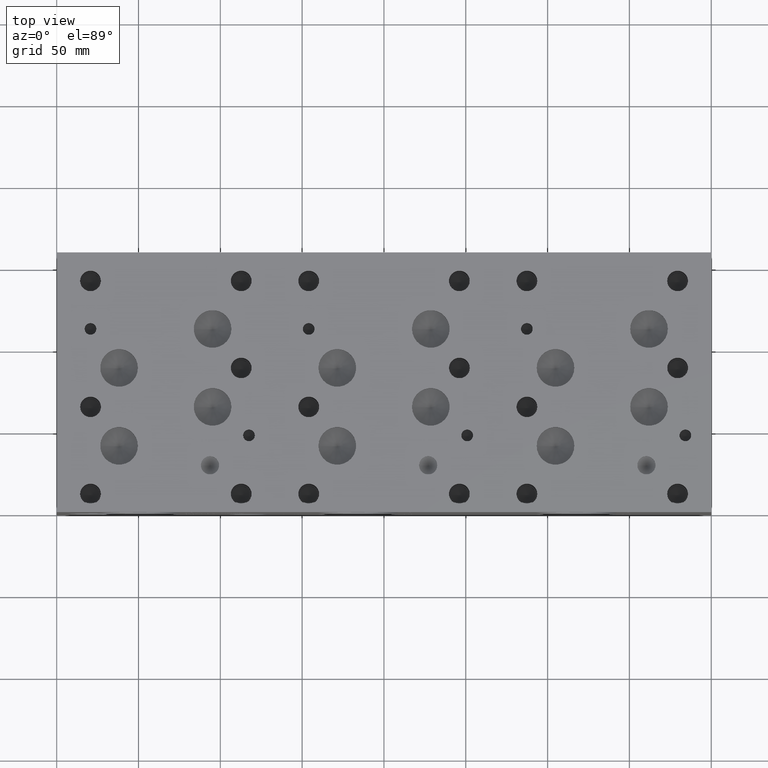
[diagram: clean part render]
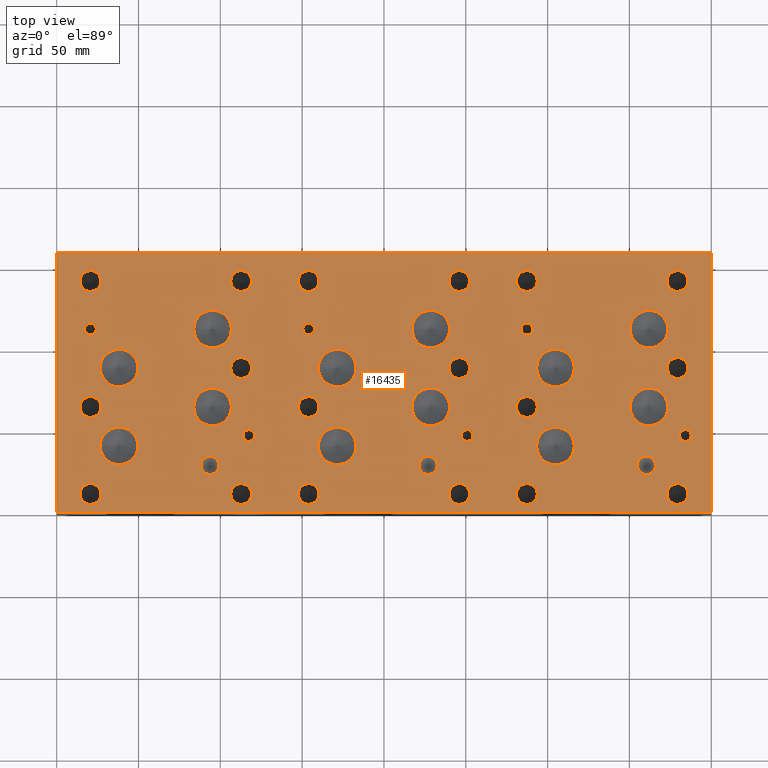
[diagram: same view with one face highlighted and labeled with its STEP entity id]
A machine part, top view. The second image highlights one B-rep face of the part: STEP entity #16435.
In plain terms, the highlighted planar face has unit normal (0, 0, 1).
Its self-contained STEP definition (entity closure, byte-faithful):
#555=CIRCLE('',#17288,5.5626);
#556=CIRCLE('',#17289,5.5626);
#559=CIRCLE('',#17294,5.5626);
#560=CIRCLE('',#17295,5.5626);
#563=CIRCLE('',#17300,5.55625);
#564=CIRCLE('',#17301,5.55625);
#567=CIRCLE('',#17306,11.50874);
#568=CIRCLE('',#17307,11.50874);
#571=CIRCLE('',#17312,11.5062);
#572=CIRCLE('',#17313,11.5062);
#575=CIRCLE('',#17318,11.5062);
#576=CIRCLE('',#17319,11.5062);
#579=CIRCLE('',#17324,11.5062);
#580=CIRCLE('',#17325,11.5062);
#583=CIRCLE('',#17330,11.5062);
#584=CIRCLE('',#17331,11.5062);
#587=CIRCLE('',#17336,11.5062);
#588=CIRCLE('',#17337,11.5062);
#591=CIRCLE('',#17342,11.5062);
#592=CIRCLE('',#17343,11.5062);
#595=CIRCLE('',#17348,11.5062);
#596=CIRCLE('',#17349,11.5062);
#599=CIRCLE('',#17354,11.5062);
#600=CIRCLE('',#17355,11.5062);
#603=CIRCLE('',#17360,11.5062);
#604=CIRCLE('',#17361,11.5062);
#607=CIRCLE('',#17366,11.5062);
#608=CIRCLE('',#17367,11.5062);
#611=CIRCLE('',#17372,11.5062);
#612=CIRCLE('',#17373,11.5062);
#615=CIRCLE('',#17378,3.5687);
#616=CIRCLE('',#17379,3.5687);
#619=CIRCLE('',#17384,3.5687);
#620=CIRCLE('',#17385,3.5687);
#623=CIRCLE('',#17390,3.5687);
#624=CIRCLE('',#17391,3.5687);
#627=CIRCLE('',#17396,3.5687);
#628=CIRCLE('',#17397,3.5687);
#631=CIRCLE('',#17402,3.5687);
#632=CIRCLE('',#17403,3.5687);
#635=CIRCLE('',#17408,3.5687);
#636=CIRCLE('',#17409,3.5687);
#642=CIRCLE('',#17418,6.35);
#643=CIRCLE('',#17419,6.35);
#649=CIRCLE('',#17429,6.35);
#650=CIRCLE('',#17430,6.35);
#656=CIRCLE('',#17440,6.35);
#657=CIRCLE('',#17441,6.35);
#663=CIRCLE('',#17451,6.35);
#664=CIRCLE('',#17452,6.35);
#670=CIRCLE('',#17462,6.35);
#671=CIRCLE('',#17463,6.35);
#677=CIRCLE('',#17473,6.35);
#678=CIRCLE('',#17474,6.35);
#684=CIRCLE('',#17484,6.35);
#685=CIRCLE('',#17485,6.35);
#691=CIRCLE('',#17495,6.35);
#692=CIRCLE('',#17496,6.35);
#698=CIRCLE('',#17506,6.35);
#699=CIRCLE('',#17507,6.35);
#705=CIRCLE('',#17517,6.35);
#706=CIRCLE('',#17518,6.35);
#712=CIRCLE('',#17528,6.35);
#713=CIRCLE('',#17529,6.35);
#719=CIRCLE('',#17539,6.35);
#720=CIRCLE('',#17540,6.35);
#726=CIRCLE('',#17550,6.35);
#727=CIRCLE('',#17551,6.35);
#733=CIRCLE('',#17561,6.35);
#734=CIRCLE('',#17562,6.35);
#740=CIRCLE('',#17572,6.35);
#741=CIRCLE('',#17573,6.35);
#747=CIRCLE('',#17583,6.35);
#748=CIRCLE('',#17584,6.35);
#754=CIRCLE('',#17594,6.35);
#755=CIRCLE('',#17595,6.35);
#761=CIRCLE('',#17605,6.35);
#762=CIRCLE('',#17606,6.35);
#882=FACE_BOUND('',#3372,.T.);
#883=FACE_BOUND('',#3373,.T.);
#884=FACE_BOUND('',#3374,.T.);
#885=FACE_BOUND('',#3375,.T.);
#886=FACE_BOUND('',#3376,.T.);
#887=FACE_BOUND('',#3377,.T.);
#888=FACE_BOUND('',#3378,.T.);
#889=FACE_BOUND('',#3379,.T.);
#890=FACE_BOUND('',#3380,.T.);
#891=FACE_BOUND('',#3381,.T.);
#892=FACE_BOUND('',#3382,.T.);
#893=FACE_BOUND('',#3383,.T.);
#894=FACE_BOUND('',#3384,.T.);
#895=FACE_BOUND('',#3385,.T.);
#896=FACE_BOUND('',#3386,.T.);
#897=FACE_BOUND('',#3387,.T.);
#898=FACE_BOUND('',#3388,.T.);
#899=FACE_BOUND('',#3389,.T.);
#900=FACE_BOUND('',#3390,.T.);
#901=FACE_BOUND('',#3391,.T.);
#902=FACE_BOUND('',#3392,.T.);
#903=FACE_BOUND('',#3393,.T.);
#904=FACE_BOUND('',#3394,.T.);
#905=FACE_BOUND('',#3395,.T.);
#906=FACE_BOUND('',#3396,.T.);
#907=FACE_BOUND('',#3397,.T.);
#908=FACE_BOUND('',#3398,.T.);
#909=FACE_BOUND('',#3399,.T.);
#910=FACE_BOUND('',#3400,.T.);
#911=FACE_BOUND('',#3401,.T.);
#912=FACE_BOUND('',#3402,.T.);
#913=FACE_BOUND('',#3403,.T.);
#914=FACE_BOUND('',#3404,.T.);
#915=FACE_BOUND('',#3405,.T.);
#916=FACE_BOUND('',#3406,.T.);
#917=FACE_BOUND('',#3407,.T.);
#918=FACE_BOUND('',#3408,.T.);
#919=FACE_BOUND('',#3409,.T.);
#920=FACE_BOUND('',#3410,.T.);
#2390=FACE_OUTER_BOUND('',#3371,.T.);
#3371=EDGE_LOOP('',(#14532,#14533,#14534,#14535));
#3372=EDGE_LOOP('',(#14536,#14537));
#3373=EDGE_LOOP('',(#14538,#14539));
#3374=EDGE_LOOP('',(#14540,#14541));
#3375=EDGE_LOOP('',(#14542,#14543));
#3376=EDGE_LOOP('',(#14544,#14545));
#3377=EDGE_LOOP('',(#14546,#14547));
#3378=EDGE_LOOP('',(#14548,#14549));
#3379=EDGE_LOOP('',(#14550,#14551));
#3380=EDGE_LOOP('',(#14552,#14553));
#3381=EDGE_LOOP('',(#14554,#14555));
#3382=EDGE_LOOP('',(#14556,#14557));
#3383=EDGE_LOOP('',(#14558,#14559));
#3384=EDGE_LOOP('',(#14560,#14561));
#3385=EDGE_LOOP('',(#14562,#14563));
#3386=EDGE_LOOP('',(#14564,#14565));
#3387=EDGE_LOOP('',(#14566,#14567));
#3388=EDGE_LOOP('',(#14568,#14569));
#3389=EDGE_LOOP('',(#14570,#14571));
#3390=EDGE_LOOP('',(#14572,#14573));
#3391=EDGE_LOOP('',(#14574,#14575));
#3392=EDGE_LOOP('',(#14576,#14577));
#3393=EDGE_LOOP('',(#14578,#14579));
#3394=EDGE_LOOP('',(#14580,#14581));
#3395=EDGE_LOOP('',(#14582,#14583));
#3396=EDGE_LOOP('',(#14584,#14585));
#3397=EDGE_LOOP('',(#14586,#14587));
#3398=EDGE_LOOP('',(#14588,#14589));
#3399=EDGE_LOOP('',(#14590,#14591));
#3400=EDGE_LOOP('',(#14592,#14593));
#3401=EDGE_LOOP('',(#14594,#14595));
#3402=EDGE_LOOP('',(#14596,#14597));
#3403=EDGE_LOOP('',(#14598,#14599));
#3404=EDGE_LOOP('',(#14600,#14601));
#3405=EDGE_LOOP('',(#14602,#14603));
#3406=EDGE_LOOP('',(#14604,#14605));
#3407=EDGE_LOOP('',(#14606,#14607));
#3408=EDGE_LOOP('',(#14608,#14609));
#3409=EDGE_LOOP('',(#14610,#14611));
#3410=EDGE_LOOP('',(#14612,#14613));
#3470=LINE('',#21578,#4848);
#3530=LINE('',#21853,#4908);
#3839=LINE('',#24587,#5217);
#4789=LINE('',#28691,#6167);
#4848=VECTOR('',#17712,10.);
#4908=VECTOR('',#17826,10.);
#5217=VECTOR('',#18297,10.);
#6167=VECTOR('',#21311,10.);
#6218=VERTEX_POINT('',#21575);
#6219=VERTEX_POINT('',#21577);
#6278=VERTEX_POINT('',#21850);
#6279=VERTEX_POINT('',#21852);
#7508=VERTEX_POINT('',#28027);
#7509=VERTEX_POINT('',#28028);
#7513=VERTEX_POINT('',#28040);
#7514=VERTEX_POINT('',#28041);
#7518=VERTEX_POINT('',#28053);
#7519=VERTEX_POINT('',#28054);
#7523=VERTEX_POINT('',#28066);
#7524=VERTEX_POINT('',#28067);
#7528=VERTEX_POINT('',#28079);
#7529=VERTEX_POINT('',#28080);
#7533=VERTEX_POINT('',#28092);
#7534=VERTEX_POINT('',#28093);
#7538=VERTEX_POINT('',#28105);
#7539=VERTEX_POINT('',#28106);
#7543=VERTEX_POINT('',#28118);
#7544=VERTEX_POINT('',#28119);
#7548=VERTEX_POINT('',#28131);
#7549=VERTEX_POINT('',#28132);
#7553=VERTEX_POINT('',#28144);
#7554=VERTEX_POINT('',#28145);
#7558=VERTEX_POINT('',#28157);
#7559=VERTEX_POINT('',#28158);
#7563=VERTEX_POINT('',#28170);
#7564=VERTEX_POINT('',#28171);
#7568=VERTEX_POINT('',#28183);
#7569=VERTEX_POINT('',#28184);
#7573=VERTEX_POINT('',#28196);
#7574=VERTEX_POINT('',#28197);
#7578=VERTEX_POINT('',#28209);
#7579=VERTEX_POINT('',#28210);
#7583=VERTEX_POINT('',#28222);
#7584=VERTEX_POINT('',#28223);
#7588=VERTEX_POINT('',#28235);
#7589=VERTEX_POINT('',#28236);
#7593=VERTEX_POINT('',#28248);
#7594=VERTEX_POINT('',#28249);
#7598=VERTEX_POINT('',#28261);
#7599=VERTEX_POINT('',#28262);
#7603=VERTEX_POINT('',#28274);
#7604=VERTEX_POINT('',#28275);
#7608=VERTEX_POINT('',#28287);
#7609=VERTEX_POINT('',#28288);
#7616=VERTEX_POINT('',#28307);
#7617=VERTEX_POINT('',#28308);
#7624=VERTEX_POINT('',#28329);
#7625=VERTEX_POINT('',#28330);
#7632=VERTEX_POINT('',#28351);
#7633=VERTEX_POINT('',#28352);
#7640=VERTEX_POINT('',#28373);
#7641=VERTEX_POINT('',#28374);
#7648=VERTEX_POINT('',#28395);
#7649=VERTEX_POINT('',#28396);
#7656=VERTEX_POINT('',#28417);
#7657=VERTEX_POINT('',#28418);
#7664=VERTEX_POINT('',#28439);
#7665=VERTEX_POINT('',#28440);
#7672=VERTEX_POINT('',#28461);
#7673=VERTEX_POINT('',#28462);
#7680=VERTEX_POINT('',#28483);
#7681=VERTEX_POINT('',#28484);
#7688=VERTEX_POINT('',#28505);
#7689=VERTEX_POINT('',#28506);
#7696=VERTEX_POINT('',#28527);
#7697=VERTEX_POINT('',#28528);
#7704=VERTEX_POINT('',#28549);
#7705=VERTEX_POINT('',#28550);
#7712=VERTEX_POINT('',#28571);
#7713=VERTEX_POINT('',#28572);
#7720=VERTEX_POINT('',#28593);
#7721=VERTEX_POINT('',#28594);
#7728=VERTEX_POINT('',#28615);
#7729=VERTEX_POINT('',#28616);
#7736=VERTEX_POINT('',#28637);
#7737=VERTEX_POINT('',#28638);
#7744=VERTEX_POINT('',#28659);
#7745=VERTEX_POINT('',#28660);
#7752=VERTEX_POINT('',#28681);
#7753=VERTEX_POINT('',#28682);
#7828=EDGE_CURVE('',#6219,#6218,#3470,.T.);
#7912=EDGE_CURVE('',#6279,#6278,#3530,.T.);
#8475=EDGE_CURVE('',#6278,#6219,#3839,.T.);
#9737=EDGE_CURVE('',#7508,#7509,#555,.T.);
#9738=EDGE_CURVE('',#7509,#7508,#556,.T.);
#9743=EDGE_CURVE('',#7513,#7514,#559,.T.);
#9744=EDGE_CURVE('',#7514,#7513,#560,.T.);
#9749=EDGE_CURVE('',#7518,#7519,#563,.T.);
#9750=EDGE_CURVE('',#7519,#7518,#564,.T.);
#9755=EDGE_CURVE('',#7523,#7524,#567,.T.);
#9756=EDGE_CURVE('',#7524,#7523,#568,.T.);
#9761=EDGE_CURVE('',#7528,#7529,#571,.T.);
#9762=EDGE_CURVE('',#7529,#7528,#572,.T.);
#9767=EDGE_CURVE('',#7533,#7534,#575,.T.);
#9768=EDGE_CURVE('',#7534,#7533,#576,.T.);
#9773=EDGE_CURVE('',#7538,#7539,#579,.T.);
#9774=EDGE_CURVE('',#7539,#7538,#580,.T.);
#9779=EDGE_CURVE('',#7543,#7544,#583,.T.);
#9780=EDGE_CURVE('',#7544,#7543,#584,.T.);
#9785=EDGE_CURVE('',#7548,#7549,#587,.T.);
#9786=EDGE_CURVE('',#7549,#7548,#588,.T.);
#9791=EDGE_CURVE('',#7553,#7554,#591,.T.);
#9792=EDGE_CURVE('',#7554,#7553,#592,.T.);
#9797=EDGE_CURVE('',#7558,#7559,#595,.T.);
#9798=EDGE_CURVE('',#7559,#7558,#596,.T.);
#9803=EDGE_CURVE('',#7563,#7564,#599,.T.);
#9804=EDGE_CURVE('',#7564,#7563,#600,.T.);
#9809=EDGE_CURVE('',#7568,#7569,#603,.T.);
#9810=EDGE_CURVE('',#7569,#7568,#604,.T.);
#9815=EDGE_CURVE('',#7573,#7574,#607,.T.);
#9816=EDGE_CURVE('',#7574,#7573,#608,.T.);
#9821=EDGE_CURVE('',#7578,#7579,#611,.T.);
#9822=EDGE_CURVE('',#7579,#7578,#612,.T.);
#9827=EDGE_CURVE('',#7583,#7584,#615,.T.);
#9828=EDGE_CURVE('',#7584,#7583,#616,.T.);
#9833=EDGE_CURVE('',#7588,#7589,#619,.T.);
#9834=EDGE_CURVE('',#7589,#7588,#620,.T.);
#9839=EDGE_CURVE('',#7593,#7594,#623,.T.);
#9840=EDGE_CURVE('',#7594,#7593,#624,.T.);
#9845=EDGE_CURVE('',#7598,#7599,#627,.T.);
#9846=EDGE_CURVE('',#7599,#7598,#628,.T.);
#9851=EDGE_CURVE('',#7603,#7604,#631,.T.);
#9852=EDGE_CURVE('',#7604,#7603,#632,.T.);
#9857=EDGE_CURVE('',#7608,#7609,#635,.T.);
#9858=EDGE_CURVE('',#7609,#7608,#636,.T.);
#9866=EDGE_CURVE('',#7616,#7617,#642,.T.);
#9867=EDGE_CURVE('',#7617,#7616,#643,.T.);
#9876=EDGE_CURVE('',#7624,#7625,#649,.T.);
#9877=EDGE_CURVE('',#7625,#7624,#650,.T.);
#9886=EDGE_CURVE('',#7632,#7633,#656,.T.);
#9887=EDGE_CURVE('',#7633,#7632,#657,.T.);
#9896=EDGE_CURVE('',#7640,#7641,#663,.T.);
#9897=EDGE_CURVE('',#7641,#7640,#664,.T.);
#9906=EDGE_CURVE('',#7648,#7649,#670,.T.);
#9907=EDGE_CURVE('',#7649,#7648,#671,.T.);
#9916=EDGE_CURVE('',#7656,#7657,#677,.T.);
#9917=EDGE_CURVE('',#7657,#7656,#678,.T.);
#9926=EDGE_CURVE('',#7664,#7665,#684,.T.);
#9927=EDGE_CURVE('',#7665,#7664,#685,.T.);
#9936=EDGE_CURVE('',#7672,#7673,#691,.T.);
#9937=EDGE_CURVE('',#7673,#7672,#692,.T.);
#9946=EDGE_CURVE('',#7680,#7681,#698,.T.);
#9947=EDGE_CURVE('',#7681,#7680,#699,.T.);
#9956=EDGE_CURVE('',#7688,#7689,#705,.T.);
#9957=EDGE_CURVE('',#7689,#7688,#706,.T.);
#9966=EDGE_CURVE('',#7696,#7697,#712,.T.);
#9967=EDGE_CURVE('',#7697,#7696,#713,.T.);
#9976=EDGE_CURVE('',#7704,#7705,#719,.T.);
#9977=EDGE_CURVE('',#7705,#7704,#720,.T.);
#9986=EDGE_CURVE('',#7712,#7713,#726,.T.);
#9987=EDGE_CURVE('',#7713,#7712,#727,.T.);
#9996=EDGE_CURVE('',#7720,#7721,#733,.T.);
#9997=EDGE_CURVE('',#7721,#7720,#734,.T.);
#10006=EDGE_CURVE('',#7728,#7729,#740,.T.);
#10007=EDGE_CURVE('',#7729,#7728,#741,.T.);
#10016=EDGE_CURVE('',#7736,#7737,#747,.T.);
#10017=EDGE_CURVE('',#7737,#7736,#748,.T.);
#10026=EDGE_CURVE('',#7744,#7745,#754,.T.);
#10027=EDGE_CURVE('',#7745,#7744,#755,.T.);
#10036=EDGE_CURVE('',#7752,#7753,#761,.T.);
#10037=EDGE_CURVE('',#7753,#7752,#762,.T.);
#10041=EDGE_CURVE('',#6218,#6279,#4789,.T.);
#14532=ORIENTED_EDGE('',*,*,#8475,.T.);
#14533=ORIENTED_EDGE('',*,*,#7828,.T.);
#14534=ORIENTED_EDGE('',*,*,#10041,.T.);
#14535=ORIENTED_EDGE('',*,*,#7912,.T.);
#14536=ORIENTED_EDGE('',*,*,#9737,.T.);
#14537=ORIENTED_EDGE('',*,*,#9738,.T.);
#14538=ORIENTED_EDGE('',*,*,#9743,.T.);
#14539=ORIENTED_EDGE('',*,*,#9744,.T.);
#14540=ORIENTED_EDGE('',*,*,#9749,.T.);
#14541=ORIENTED_EDGE('',*,*,#9750,.T.);
#14542=ORIENTED_EDGE('',*,*,#9755,.T.);
#14543=ORIENTED_EDGE('',*,*,#9756,.T.);
#14544=ORIENTED_EDGE('',*,*,#9761,.T.);
#14545=ORIENTED_EDGE('',*,*,#9762,.T.);
#14546=ORIENTED_EDGE('',*,*,#9767,.T.);
#14547=ORIENTED_EDGE('',*,*,#9768,.T.);
#14548=ORIENTED_EDGE('',*,*,#9773,.T.);
#14549=ORIENTED_EDGE('',*,*,#9774,.T.);
#14550=ORIENTED_EDGE('',*,*,#9779,.T.);
#14551=ORIENTED_EDGE('',*,*,#9780,.T.);
#14552=ORIENTED_EDGE('',*,*,#9785,.T.);
#14553=ORIENTED_EDGE('',*,*,#9786,.T.);
#14554=ORIENTED_EDGE('',*,*,#9791,.T.);
#14555=ORIENTED_EDGE('',*,*,#9792,.T.);
#14556=ORIENTED_EDGE('',*,*,#9797,.T.);
#14557=ORIENTED_EDGE('',*,*,#9798,.T.);
#14558=ORIENTED_EDGE('',*,*,#9803,.T.);
#14559=ORIENTED_EDGE('',*,*,#9804,.T.);
#14560=ORIENTED_EDGE('',*,*,#9809,.T.);
#14561=ORIENTED_EDGE('',*,*,#9810,.T.);
#14562=ORIENTED_EDGE('',*,*,#9815,.T.);
#14563=ORIENTED_EDGE('',*,*,#9816,.T.);
#14564=ORIENTED_EDGE('',*,*,#9821,.T.);
#14565=ORIENTED_EDGE('',*,*,#9822,.T.);
#14566=ORIENTED_EDGE('',*,*,#9827,.T.);
#14567=ORIENTED_EDGE('',*,*,#9828,.T.);
#14568=ORIENTED_EDGE('',*,*,#9833,.T.);
#14569=ORIENTED_EDGE('',*,*,#9834,.T.);
#14570=ORIENTED_EDGE('',*,*,#9839,.T.);
#14571=ORIENTED_EDGE('',*,*,#9840,.T.);
#14572=ORIENTED_EDGE('',*,*,#9845,.T.);
#14573=ORIENTED_EDGE('',*,*,#9846,.T.);
#14574=ORIENTED_EDGE('',*,*,#9851,.T.);
#14575=ORIENTED_EDGE('',*,*,#9852,.T.);
#14576=ORIENTED_EDGE('',*,*,#9857,.T.);
#14577=ORIENTED_EDGE('',*,*,#9858,.T.);
#14578=ORIENTED_EDGE('',*,*,#9866,.T.);
#14579=ORIENTED_EDGE('',*,*,#9867,.T.);
#14580=ORIENTED_EDGE('',*,*,#9876,.T.);
#14581=ORIENTED_EDGE('',*,*,#9877,.T.);
#14582=ORIENTED_EDGE('',*,*,#9886,.T.);
#14583=ORIENTED_EDGE('',*,*,#9887,.T.);
#14584=ORIENTED_EDGE('',*,*,#9896,.T.);
#14585=ORIENTED_EDGE('',*,*,#9897,.T.);
#14586=ORIENTED_EDGE('',*,*,#9906,.T.);
#14587=ORIENTED_EDGE('',*,*,#9907,.T.);
#14588=ORIENTED_EDGE('',*,*,#9916,.T.);
#14589=ORIENTED_EDGE('',*,*,#9917,.T.);
#14590=ORIENTED_EDGE('',*,*,#9926,.T.);
#14591=ORIENTED_EDGE('',*,*,#9927,.T.);
#14592=ORIENTED_EDGE('',*,*,#9936,.T.);
#14593=ORIENTED_EDGE('',*,*,#9937,.T.);
#14594=ORIENTED_EDGE('',*,*,#9946,.T.);
#14595=ORIENTED_EDGE('',*,*,#9947,.T.);
#14596=ORIENTED_EDGE('',*,*,#9956,.T.);
#14597=ORIENTED_EDGE('',*,*,#9957,.T.);
#14598=ORIENTED_EDGE('',*,*,#9966,.T.);
#14599=ORIENTED_EDGE('',*,*,#9967,.T.);
#14600=ORIENTED_EDGE('',*,*,#9976,.T.);
#14601=ORIENTED_EDGE('',*,*,#9977,.T.);
#14602=ORIENTED_EDGE('',*,*,#9986,.T.);
#14603=ORIENTED_EDGE('',*,*,#9987,.T.);
#14604=ORIENTED_EDGE('',*,*,#9996,.T.);
#14605=ORIENTED_EDGE('',*,*,#9997,.T.);
#14606=ORIENTED_EDGE('',*,*,#10006,.T.);
#14607=ORIENTED_EDGE('',*,*,#10007,.T.);
#14608=ORIENTED_EDGE('',*,*,#10016,.T.);
#14609=ORIENTED_EDGE('',*,*,#10017,.T.);
#14610=ORIENTED_EDGE('',*,*,#10026,.T.);
#14611=ORIENTED_EDGE('',*,*,#10027,.T.);
#14612=ORIENTED_EDGE('',*,*,#10036,.T.);
#14613=ORIENTED_EDGE('',*,*,#10037,.T.);
#15030=PLANE('',#17612);
#16435=ADVANCED_FACE('',(#2390,#882,#883,#884,#885,#886,#887,#888,#889,
#890,#891,#892,#893,#894,#895,#896,#897,#898,#899,#900,#901,#902,#903,#904,
#905,#906,#907,#908,#909,#910,#911,#912,#913,#914,#915,#916,#917,#918,#919,
#920),#15030,.T.);
#17288=AXIS2_PLACEMENT_3D('',#28029,#20571,#20572);
#17289=AXIS2_PLACEMENT_3D('',#28030,#20573,#20574);
#17294=AXIS2_PLACEMENT_3D('',#28042,#20585,#20586);
#17295=AXIS2_PLACEMENT_3D('',#28043,#20587,#20588);
#17300=AXIS2_PLACEMENT_3D('',#28055,#20599,#20600);
#17301=AXIS2_PLACEMENT_3D('',#28056,#20601,#20602);
#17306=AXIS2_PLACEMENT_3D('',#28068,#20613,#20614);
#17307=AXIS2_PLACEMENT_3D('',#28069,#20615,#20616);
#17312=AXIS2_PLACEMENT_3D('',#28081,#20627,#20628);
#17313=AXIS2_PLACEMENT_3D('',#28082,#20629,#20630);
#17318=AXIS2_PLACEMENT_3D('',#28094,#20641,#20642);
#17319=AXIS2_PLACEMENT_3D('',#28095,#20643,#20644);
#17324=AXIS2_PLACEMENT_3D('',#28107,#20655,#20656);
#17325=AXIS2_PLACEMENT_3D('',#28108,#20657,#20658);
#17330=AXIS2_PLACEMENT_3D('',#28120,#20669,#20670);
#17331=AXIS2_PLACEMENT_3D('',#28121,#20671,#20672);
#17336=AXIS2_PLACEMENT_3D('',#28133,#20683,#20684);
#17337=AXIS2_PLACEMENT_3D('',#28134,#20685,#20686);
#17342=AXIS2_PLACEMENT_3D('',#28146,#20697,#20698);
#17343=AXIS2_PLACEMENT_3D('',#28147,#20699,#20700);
#17348=AXIS2_PLACEMENT_3D('',#28159,#20711,#20712);
#17349=AXIS2_PLACEMENT_3D('',#28160,#20713,#20714);
#17354=AXIS2_PLACEMENT_3D('',#28172,#20725,#20726);
#17355=AXIS2_PLACEMENT_3D('',#28173,#20727,#20728);
#17360=AXIS2_PLACEMENT_3D('',#28185,#20739,#20740);
#17361=AXIS2_PLACEMENT_3D('',#28186,#20741,#20742);
#17366=AXIS2_PLACEMENT_3D('',#28198,#20753,#20754);
#17367=AXIS2_PLACEMENT_3D('',#28199,#20755,#20756);
#17372=AXIS2_PLACEMENT_3D('',#28211,#20767,#20768);
#17373=AXIS2_PLACEMENT_3D('',#28212,#20769,#20770);
#17378=AXIS2_PLACEMENT_3D('',#28224,#20781,#20782);
#17379=AXIS2_PLACEMENT_3D('',#28225,#20783,#20784);
#17384=AXIS2_PLACEMENT_3D('',#28237,#20795,#20796);
#17385=AXIS2_PLACEMENT_3D('',#28238,#20797,#20798);
#17390=AXIS2_PLACEMENT_3D('',#28250,#20809,#20810);
#17391=AXIS2_PLACEMENT_3D('',#28251,#20811,#20812);
#17396=AXIS2_PLACEMENT_3D('',#28263,#20823,#20824);
#17397=AXIS2_PLACEMENT_3D('',#28264,#20825,#20826);
#17402=AXIS2_PLACEMENT_3D('',#28276,#20837,#20838);
#17403=AXIS2_PLACEMENT_3D('',#28277,#20839,#20840);
#17408=AXIS2_PLACEMENT_3D('',#28289,#20851,#20852);
#17409=AXIS2_PLACEMENT_3D('',#28290,#20853,#20854);
#17418=AXIS2_PLACEMENT_3D('',#28309,#20873,#20874);
#17419=AXIS2_PLACEMENT_3D('',#28310,#20875,#20876);
#17429=AXIS2_PLACEMENT_3D('',#28331,#20898,#20899);
#17430=AXIS2_PLACEMENT_3D('',#28332,#20900,#20901);
#17440=AXIS2_PLACEMENT_3D('',#28353,#20923,#20924);
#17441=AXIS2_PLACEMENT_3D('',#28354,#20925,#20926);
#17451=AXIS2_PLACEMENT_3D('',#28375,#20948,#20949);
#17452=AXIS2_PLACEMENT_3D('',#28376,#20950,#20951);
#17462=AXIS2_PLACEMENT_3D('',#28397,#20973,#20974);
#17463=AXIS2_PLACEMENT_3D('',#28398,#20975,#20976);
#17473=AXIS2_PLACEMENT_3D('',#28419,#20998,#20999);
#17474=AXIS2_PLACEMENT_3D('',#28420,#21000,#21001);
#17484=AXIS2_PLACEMENT_3D('',#28441,#21023,#21024);
#17485=AXIS2_PLACEMENT_3D('',#28442,#21025,#21026);
#17495=AXIS2_PLACEMENT_3D('',#28463,#21048,#21049);
#17496=AXIS2_PLACEMENT_3D('',#28464,#21050,#21051);
#17506=AXIS2_PLACEMENT_3D('',#28485,#21073,#21074);
#17507=AXIS2_PLACEMENT_3D('',#28486,#21075,#21076);
#17517=AXIS2_PLACEMENT_3D('',#28507,#21098,#21099);
#17518=AXIS2_PLACEMENT_3D('',#28508,#21100,#21101);
#17528=AXIS2_PLACEMENT_3D('',#28529,#21123,#21124);
#17529=AXIS2_PLACEMENT_3D('',#28530,#21125,#21126);
#17539=AXIS2_PLACEMENT_3D('',#28551,#21148,#21149);
#17540=AXIS2_PLACEMENT_3D('',#28552,#21150,#21151);
#17550=AXIS2_PLACEMENT_3D('',#28573,#21173,#21174);
#17551=AXIS2_PLACEMENT_3D('',#28574,#21175,#21176);
#17561=AXIS2_PLACEMENT_3D('',#28595,#21198,#21199);
#17562=AXIS2_PLACEMENT_3D('',#28596,#21200,#21201);
#17572=AXIS2_PLACEMENT_3D('',#28617,#21223,#21224);
#17573=AXIS2_PLACEMENT_3D('',#28618,#21225,#21226);
#17583=AXIS2_PLACEMENT_3D('',#28639,#21248,#21249);
#17584=AXIS2_PLACEMENT_3D('',#28640,#21250,#21251);
#17594=AXIS2_PLACEMENT_3D('',#28661,#21273,#21274);
#17595=AXIS2_PLACEMENT_3D('',#28662,#21275,#21276);
#17605=AXIS2_PLACEMENT_3D('',#28683,#21298,#21299);
#17606=AXIS2_PLACEMENT_3D('',#28684,#21300,#21301);
#17612=AXIS2_PLACEMENT_3D('',#28694,#21316,#21317);
#17712=DIRECTION('',(0.,1.,0.));
#17826=DIRECTION('',(0.,-1.,0.));
#18297=DIRECTION('',(1.,0.,0.));
#20571=DIRECTION('center_axis',(0.,0.,-1.));
#20572=DIRECTION('ref_axis',(1.,0.,0.));
#20573=DIRECTION('center_axis',(0.,0.,-1.));
#20574=DIRECTION('ref_axis',(1.,0.,0.));
#20585=DIRECTION('center_axis',(0.,0.,-1.));
#20586=DIRECTION('ref_axis',(1.,0.,0.));
#20587=DIRECTION('center_axis',(0.,0.,-1.));
#20588=DIRECTION('ref_axis',(1.,0.,0.));
#20599=DIRECTION('center_axis',(0.,0.,-1.));
#20600=DIRECTION('ref_axis',(1.,0.,0.));
#20601=DIRECTION('center_axis',(0.,0.,-1.));
#20602=DIRECTION('ref_axis',(1.,0.,0.));
#20613=DIRECTION('center_axis',(0.,0.,-1.));
#20614=DIRECTION('ref_axis',(1.,0.,0.));
#20615=DIRECTION('center_axis',(0.,0.,-1.));
#20616=DIRECTION('ref_axis',(1.,0.,0.));
#20627=DIRECTION('center_axis',(0.,0.,-1.));
#20628=DIRECTION('ref_axis',(1.,0.,0.));
#20629=DIRECTION('center_axis',(0.,0.,-1.));
#20630=DIRECTION('ref_axis',(1.,0.,0.));
#20641=DIRECTION('center_axis',(0.,0.,-1.));
#20642=DIRECTION('ref_axis',(1.,0.,0.));
#20643=DIRECTION('center_axis',(0.,0.,-1.));
#20644=DIRECTION('ref_axis',(1.,0.,0.));
#20655=DIRECTION('center_axis',(0.,0.,-1.));
#20656=DIRECTION('ref_axis',(1.,0.,0.));
#20657=DIRECTION('center_axis',(0.,0.,-1.));
#20658=DIRECTION('ref_axis',(1.,0.,0.));
#20669=DIRECTION('center_axis',(0.,0.,-1.));
#20670=DIRECTION('ref_axis',(1.,0.,0.));
#20671=DIRECTION('center_axis',(0.,0.,-1.));
#20672=DIRECTION('ref_axis',(1.,0.,0.));
#20683=DIRECTION('center_axis',(0.,0.,-1.));
#20684=DIRECTION('ref_axis',(1.,0.,0.));
#20685=DIRECTION('center_axis',(0.,0.,-1.));
#20686=DIRECTION('ref_axis',(1.,0.,0.));
#20697=DIRECTION('center_axis',(0.,0.,-1.));
#20698=DIRECTION('ref_axis',(1.,0.,0.));
#20699=DIRECTION('center_axis',(0.,0.,-1.));
#20700=DIRECTION('ref_axis',(1.,0.,0.));
#20711=DIRECTION('center_axis',(0.,0.,-1.));
#20712=DIRECTION('ref_axis',(1.,0.,0.));
#20713=DIRECTION('center_axis',(0.,0.,-1.));
#20714=DIRECTION('ref_axis',(1.,0.,0.));
#20725=DIRECTION('center_axis',(0.,0.,-1.));
#20726=DIRECTION('ref_axis',(1.,0.,0.));
#20727=DIRECTION('center_axis',(0.,0.,-1.));
#20728=DIRECTION('ref_axis',(1.,0.,0.));
#20739=DIRECTION('center_axis',(0.,0.,-1.));
#20740=DIRECTION('ref_axis',(1.,0.,0.));
#20741=DIRECTION('center_axis',(0.,0.,-1.));
#20742=DIRECTION('ref_axis',(1.,0.,0.));
#20753=DIRECTION('center_axis',(0.,0.,-1.));
#20754=DIRECTION('ref_axis',(1.,0.,0.));
#20755=DIRECTION('center_axis',(0.,0.,-1.));
#20756=DIRECTION('ref_axis',(1.,0.,0.));
#20767=DIRECTION('center_axis',(0.,0.,-1.));
#20768=DIRECTION('ref_axis',(1.,0.,0.));
#20769=DIRECTION('center_axis',(0.,0.,-1.));
#20770=DIRECTION('ref_axis',(1.,0.,0.));
#20781=DIRECTION('center_axis',(0.,0.,-1.));
#20782=DIRECTION('ref_axis',(1.,0.,0.));
#20783=DIRECTION('center_axis',(0.,0.,-1.));
#20784=DIRECTION('ref_axis',(1.,0.,0.));
#20795=DIRECTION('center_axis',(0.,0.,-1.));
#20796=DIRECTION('ref_axis',(1.,0.,0.));
#20797=DIRECTION('center_axis',(0.,0.,-1.));
#20798=DIRECTION('ref_axis',(1.,0.,0.));
#20809=DIRECTION('center_axis',(0.,0.,-1.));
#20810=DIRECTION('ref_axis',(1.,0.,0.));
#20811=DIRECTION('center_axis',(0.,0.,-1.));
#20812=DIRECTION('ref_axis',(1.,0.,0.));
#20823=DIRECTION('center_axis',(0.,0.,-1.));
#20824=DIRECTION('ref_axis',(1.,0.,0.));
#20825=DIRECTION('center_axis',(0.,0.,-1.));
#20826=DIRECTION('ref_axis',(1.,0.,0.));
#20837=DIRECTION('center_axis',(0.,0.,-1.));
#20838=DIRECTION('ref_axis',(1.,0.,0.));
#20839=DIRECTION('center_axis',(0.,0.,-1.));
#20840=DIRECTION('ref_axis',(1.,0.,0.));
#20851=DIRECTION('center_axis',(0.,0.,-1.));
#20852=DIRECTION('ref_axis',(1.,0.,0.));
#20853=DIRECTION('center_axis',(0.,0.,-1.));
#20854=DIRECTION('ref_axis',(1.,0.,0.));
#20873=DIRECTION('center_axis',(0.,0.,-1.));
#20874=DIRECTION('ref_axis',(1.,0.,0.));
#20875=DIRECTION('center_axis',(0.,0.,-1.));
#20876=DIRECTION('ref_axis',(1.,0.,0.));
#20898=DIRECTION('center_axis',(0.,0.,-1.));
#20899=DIRECTION('ref_axis',(1.,0.,0.));
#20900=DIRECTION('center_axis',(0.,0.,-1.));
#20901=DIRECTION('ref_axis',(1.,0.,0.));
#20923=DIRECTION('center_axis',(0.,0.,-1.));
#20924=DIRECTION('ref_axis',(1.,0.,0.));
#20925=DIRECTION('center_axis',(0.,0.,-1.));
#20926=DIRECTION('ref_axis',(1.,0.,0.));
#20948=DIRECTION('center_axis',(0.,0.,-1.));
#20949=DIRECTION('ref_axis',(1.,0.,0.));
#20950=DIRECTION('center_axis',(0.,0.,-1.));
#20951=DIRECTION('ref_axis',(1.,0.,0.));
#20973=DIRECTION('center_axis',(0.,0.,-1.));
#20974=DIRECTION('ref_axis',(1.,0.,0.));
#20975=DIRECTION('center_axis',(0.,0.,-1.));
#20976=DIRECTION('ref_axis',(1.,0.,0.));
#20998=DIRECTION('center_axis',(0.,0.,-1.));
#20999=DIRECTION('ref_axis',(1.,0.,0.));
#21000=DIRECTION('center_axis',(0.,0.,-1.));
#21001=DIRECTION('ref_axis',(1.,0.,0.));
#21023=DIRECTION('center_axis',(0.,0.,-1.));
#21024=DIRECTION('ref_axis',(1.,0.,0.));
#21025=DIRECTION('center_axis',(0.,0.,-1.));
#21026=DIRECTION('ref_axis',(1.,0.,0.));
#21048=DIRECTION('center_axis',(0.,0.,-1.));
#21049=DIRECTION('ref_axis',(1.,0.,0.));
#21050=DIRECTION('center_axis',(0.,0.,-1.));
#21051=DIRECTION('ref_axis',(1.,0.,0.));
#21073=DIRECTION('center_axis',(0.,0.,-1.));
#21074=DIRECTION('ref_axis',(1.,0.,0.));
#21075=DIRECTION('center_axis',(0.,0.,-1.));
#21076=DIRECTION('ref_axis',(1.,0.,0.));
#21098=DIRECTION('center_axis',(0.,0.,-1.));
#21099=DIRECTION('ref_axis',(1.,0.,0.));
#21100=DIRECTION('center_axis',(0.,0.,-1.));
#21101=DIRECTION('ref_axis',(1.,0.,0.));
#21123=DIRECTION('center_axis',(0.,0.,-1.));
#21124=DIRECTION('ref_axis',(1.,0.,0.));
#21125=DIRECTION('center_axis',(0.,0.,-1.));
#21126=DIRECTION('ref_axis',(1.,0.,0.));
#21148=DIRECTION('center_axis',(0.,0.,-1.));
#21149=DIRECTION('ref_axis',(1.,0.,0.));
#21150=DIRECTION('center_axis',(0.,0.,-1.));
#21151=DIRECTION('ref_axis',(1.,0.,0.));
#21173=DIRECTION('center_axis',(0.,0.,-1.));
#21174=DIRECTION('ref_axis',(1.,0.,0.));
#21175=DIRECTION('center_axis',(0.,0.,-1.));
#21176=DIRECTION('ref_axis',(1.,0.,0.));
#21198=DIRECTION('center_axis',(0.,0.,-1.));
#21199=DIRECTION('ref_axis',(1.,0.,0.));
#21200=DIRECTION('center_axis',(0.,0.,-1.));
#21201=DIRECTION('ref_axis',(1.,0.,0.));
#21223=DIRECTION('center_axis',(0.,0.,-1.));
#21224=DIRECTION('ref_axis',(1.,0.,0.));
#21225=DIRECTION('center_axis',(0.,0.,-1.));
#21226=DIRECTION('ref_axis',(1.,0.,0.));
#21248=DIRECTION('center_axis',(0.,0.,-1.));
#21249=DIRECTION('ref_axis',(1.,0.,0.));
#21250=DIRECTION('center_axis',(0.,0.,-1.));
#21251=DIRECTION('ref_axis',(1.,0.,0.));
#21273=DIRECTION('center_axis',(0.,0.,-1.));
#21274=DIRECTION('ref_axis',(1.,0.,0.));
#21275=DIRECTION('center_axis',(0.,0.,-1.));
#21276=DIRECTION('ref_axis',(1.,0.,0.));
#21298=DIRECTION('center_axis',(0.,0.,-1.));
#21299=DIRECTION('ref_axis',(1.,0.,0.));
#21300=DIRECTION('center_axis',(0.,0.,-1.));
#21301=DIRECTION('ref_axis',(1.,0.,0.));
#21311=DIRECTION('',(-1.,0.,0.));
#21316=DIRECTION('center_axis',(0.,0.,1.));
#21317=DIRECTION('ref_axis',(1.,0.,0.));
#21575=CARTESIAN_POINT('',(400.05,158.75,120.65));
#21577=CARTESIAN_POINT('',(400.05,0.,120.65));
#21578=CARTESIAN_POINT('',(400.05,0.,120.65));
#21850=CARTESIAN_POINT('',(0.,0.,120.65));
#21852=CARTESIAN_POINT('',(0.,158.75,120.65));
#21853=CARTESIAN_POINT('',(0.,158.75,120.65));
#24587=CARTESIAN_POINT('',(0.,0.,120.65));
#28027=CARTESIAN_POINT('',(232.5624,28.575,120.65));
#28028=CARTESIAN_POINT('',(221.4372,28.575,120.65));
#28029=CARTESIAN_POINT('Origin',(226.9998,28.575,120.65));
#28030=CARTESIAN_POINT('Origin',(226.9998,28.575,120.65));
#28040=CARTESIAN_POINT('',(365.9124,28.575,120.65));
#28041=CARTESIAN_POINT('',(354.7872,28.575,120.65));
#28042=CARTESIAN_POINT('Origin',(360.3498,28.575,120.65));
#28043=CARTESIAN_POINT('Origin',(360.3498,28.575,120.65));
#28053=CARTESIAN_POINT('',(99.21875,28.56992,120.65));
#28054=CARTESIAN_POINT('',(88.10625,28.56992,120.65));
#28055=CARTESIAN_POINT('Origin',(93.6625,28.56992,120.65));
#28056=CARTESIAN_POINT('Origin',(93.6625,28.56992,120.65));
#28066=CARTESIAN_POINT('',(106.75874,111.9124,120.65));
#28067=CARTESIAN_POINT('',(83.74126,111.9124,120.65));
#28068=CARTESIAN_POINT('Origin',(95.25,111.9124,120.65));
#28069=CARTESIAN_POINT('Origin',(95.25,111.9124,120.65));
#28079=CARTESIAN_POINT('',(316.3062,88.1126,120.65));
#28080=CARTESIAN_POINT('',(293.2938,88.1126,120.65));
#28081=CARTESIAN_POINT('Origin',(304.8,88.1126,120.65));
#28082=CARTESIAN_POINT('Origin',(304.8,88.1126,120.65));
#28092=CARTESIAN_POINT('',(373.4562,64.2874,120.65));
#28093=CARTESIAN_POINT('',(350.4438,64.2874,120.65));
#28094=CARTESIAN_POINT('Origin',(361.95,64.2874,120.65));
#28095=CARTESIAN_POINT('Origin',(361.95,64.2874,120.65));
#28105=CARTESIAN_POINT('',(182.9562,88.1126,120.65));
#28106=CARTESIAN_POINT('',(159.9438,88.1126,120.65));
#28107=CARTESIAN_POINT('Origin',(171.45,88.1126,120.65));
#28108=CARTESIAN_POINT('Origin',(171.45,88.1126,120.65));
#28118=CARTESIAN_POINT('',(240.1062,64.2874,120.65));
#28119=CARTESIAN_POINT('',(217.0938,64.2874,120.65));
#28120=CARTESIAN_POINT('Origin',(228.6,64.2874,120.65));
#28121=CARTESIAN_POINT('Origin',(228.6,64.2874,120.65));
#28131=CARTESIAN_POINT('',(49.6062,88.1126,120.65));
#28132=CARTESIAN_POINT('',(26.5938,88.1126,120.65));
#28133=CARTESIAN_POINT('Origin',(38.1,88.1126,120.65));
#28134=CARTESIAN_POINT('Origin',(38.1,88.1126,120.65));
#28144=CARTESIAN_POINT('',(106.7562,64.2874,120.65));
#28145=CARTESIAN_POINT('',(83.7438,64.2874,120.65));
#28146=CARTESIAN_POINT('Origin',(95.25,64.2874,120.65));
#28147=CARTESIAN_POINT('Origin',(95.25,64.2874,120.65));
#28157=CARTESIAN_POINT('',(49.6062,40.4622,120.65));
#28158=CARTESIAN_POINT('',(26.5938,40.4622,120.65));
#28159=CARTESIAN_POINT('Origin',(38.1,40.4622,120.65));
#28160=CARTESIAN_POINT('Origin',(38.1,40.4622,120.65));
#28170=CARTESIAN_POINT('',(240.1062,111.9124,120.65));
#28171=CARTESIAN_POINT('',(217.0938,111.9124,120.65));
#28172=CARTESIAN_POINT('Origin',(228.6,111.9124,120.65));
#28173=CARTESIAN_POINT('Origin',(228.6,111.9124,120.65));
#28183=CARTESIAN_POINT('',(182.9562,40.4622,120.65));
#28184=CARTESIAN_POINT('',(159.9438,40.4622,120.65));
#28185=CARTESIAN_POINT('Origin',(171.45,40.4622,120.65));
#28186=CARTESIAN_POINT('Origin',(171.45,40.4622,120.65));
#28196=CARTESIAN_POINT('',(373.4562,111.9124,120.65));
#28197=CARTESIAN_POINT('',(350.4438,111.9124,120.65));
#28198=CARTESIAN_POINT('Origin',(361.95,111.9124,120.65));
#28199=CARTESIAN_POINT('Origin',(361.95,111.9124,120.65));
#28209=CARTESIAN_POINT('',(316.3062,40.4622,120.65));
#28210=CARTESIAN_POINT('',(293.2938,40.4622,120.65));
#28211=CARTESIAN_POINT('Origin',(304.8,40.4622,120.65));
#28212=CARTESIAN_POINT('Origin',(304.8,40.4622,120.65));
#28222=CARTESIAN_POINT('',(290.8935,111.9124,120.65));
#28223=CARTESIAN_POINT('',(283.7561,111.9124,120.65));
#28224=CARTESIAN_POINT('Origin',(287.3248,111.9124,120.65));
#28225=CARTESIAN_POINT('Origin',(287.3248,111.9124,120.65));
#28235=CARTESIAN_POINT('',(157.5435,111.9124,120.65));
#28236=CARTESIAN_POINT('',(150.4061,111.9124,120.65));
#28237=CARTESIAN_POINT('Origin',(153.9748,111.9124,120.65));
#28238=CARTESIAN_POINT('Origin',(153.9748,111.9124,120.65));
#28248=CARTESIAN_POINT('',(24.1935,111.9124,120.65));
#28249=CARTESIAN_POINT('',(17.0561,111.9124,120.65));
#28250=CARTESIAN_POINT('Origin',(20.6248,111.9124,120.65));
#28251=CARTESIAN_POINT('Origin',(20.6248,111.9124,120.65));
#28261=CARTESIAN_POINT('',(121.0437,46.8376,120.65));
#28262=CARTESIAN_POINT('',(113.9063,46.8376,120.65));
#28263=CARTESIAN_POINT('Origin',(117.475,46.8376,120.65));
#28264=CARTESIAN_POINT('Origin',(117.475,46.8376,120.65));
#28274=CARTESIAN_POINT('',(254.3937,46.8376,120.65));
#28275=CARTESIAN_POINT('',(247.2563,46.8376,120.65));
#28276=CARTESIAN_POINT('Origin',(250.825,46.8376,120.65));
#28277=CARTESIAN_POINT('Origin',(250.825,46.8376,120.65));
#28287=CARTESIAN_POINT('',(387.7437,46.8376,120.65));
#28288=CARTESIAN_POINT('',(380.6063,46.8376,120.65));
#28289=CARTESIAN_POINT('Origin',(384.175,46.8376,120.65));
#28290=CARTESIAN_POINT('Origin',(384.175,46.8376,120.65));
#28307=CARTESIAN_POINT('',(293.6748,11.0998,120.65));
#28308=CARTESIAN_POINT('',(280.9748,11.0998,120.65));
#28309=CARTESIAN_POINT('Origin',(287.3248,11.0998,120.65));
#28310=CARTESIAN_POINT('Origin',(287.3248,11.0998,120.65));
#28329=CARTESIAN_POINT('',(385.7752,88.0872,120.65));
#28330=CARTESIAN_POINT('',(373.0752,88.0872,120.65));
#28331=CARTESIAN_POINT('Origin',(379.4252,88.0872,120.65));
#28332=CARTESIAN_POINT('Origin',(379.4252,88.0872,120.65));
#28351=CARTESIAN_POINT('',(293.6748,141.2748,120.65));
#28352=CARTESIAN_POINT('',(280.9748,141.2748,120.65));
#28353=CARTESIAN_POINT('Origin',(287.3248,141.2748,120.65));
#28354=CARTESIAN_POINT('Origin',(287.3248,141.2748,120.65));
#28373=CARTESIAN_POINT('',(160.3248,11.0998,120.65));
#28374=CARTESIAN_POINT('',(147.6248,11.0998,120.65));
#28375=CARTESIAN_POINT('Origin',(153.9748,11.0998,120.65));
#28376=CARTESIAN_POINT('Origin',(153.9748,11.0998,120.65));
#28395=CARTESIAN_POINT('',(252.4252,88.0872,120.65));
#28396=CARTESIAN_POINT('',(239.7252,88.0872,120.65));
#28397=CARTESIAN_POINT('Origin',(246.0752,88.0872,120.65));
#28398=CARTESIAN_POINT('Origin',(246.0752,88.0872,120.65));
#28417=CARTESIAN_POINT('',(160.3248,141.2748,120.65));
#28418=CARTESIAN_POINT('',(147.6248,141.2748,120.65));
#28419=CARTESIAN_POINT('Origin',(153.9748,141.2748,120.65));
#28420=CARTESIAN_POINT('Origin',(153.9748,141.2748,120.65));
#28439=CARTESIAN_POINT('',(26.9875,11.10742,120.65));
#28440=CARTESIAN_POINT('',(14.2875,11.10742,120.65));
#28441=CARTESIAN_POINT('Origin',(20.6375,11.10742,120.65));
#28442=CARTESIAN_POINT('Origin',(20.6375,11.10742,120.65));
#28461=CARTESIAN_POINT('',(119.0752,88.0999,120.65));
#28462=CARTESIAN_POINT('',(106.3752,88.0999,120.65));
#28463=CARTESIAN_POINT('Origin',(112.7252,88.0999,120.65));
#28464=CARTESIAN_POINT('Origin',(112.7252,88.0999,120.65));
#28483=CARTESIAN_POINT('',(119.0625,141.27988,120.65));
#28484=CARTESIAN_POINT('',(106.3625,141.27988,120.65));
#28485=CARTESIAN_POINT('Origin',(112.7125,141.27988,120.65));
#28486=CARTESIAN_POINT('Origin',(112.7125,141.27988,120.65));
#28505=CARTESIAN_POINT('',(119.0625,11.10742,120.65));
#28506=CARTESIAN_POINT('',(106.3625,11.10742,120.65));
#28507=CARTESIAN_POINT('Origin',(112.7125,11.10742,120.65));
#28508=CARTESIAN_POINT('Origin',(112.7125,11.10742,120.65));
#28527=CARTESIAN_POINT('',(27.0002,64.2874,120.65));
#28528=CARTESIAN_POINT('',(14.3002,64.2874,120.65));
#28529=CARTESIAN_POINT('Origin',(20.6502,64.2874,120.65));
#28530=CARTESIAN_POINT('Origin',(20.6502,64.2874,120.65));
#28549=CARTESIAN_POINT('',(252.3998,141.2748,120.65));
#28550=CARTESIAN_POINT('',(239.6998,141.2748,120.65));
#28551=CARTESIAN_POINT('Origin',(246.0498,141.2748,120.65));
#28552=CARTESIAN_POINT('Origin',(246.0498,141.2748,120.65));
#28571=CARTESIAN_POINT('',(252.3998,11.0998,120.65));
#28572=CARTESIAN_POINT('',(239.6998,11.0998,120.65));
#28573=CARTESIAN_POINT('Origin',(246.0498,11.0998,120.65));
#28574=CARTESIAN_POINT('Origin',(246.0498,11.0998,120.65));
#28593=CARTESIAN_POINT('',(160.3502,64.2874,120.65));
#28594=CARTESIAN_POINT('',(147.6502,64.2874,120.65));
#28595=CARTESIAN_POINT('Origin',(154.0002,64.2874,120.65));
#28596=CARTESIAN_POINT('Origin',(154.0002,64.2874,120.65));
#28615=CARTESIAN_POINT('',(385.7498,141.2748,120.65));
#28616=CARTESIAN_POINT('',(373.0498,141.2748,120.65));
#28617=CARTESIAN_POINT('Origin',(379.3998,141.2748,120.65));
#28618=CARTESIAN_POINT('Origin',(379.3998,141.2748,120.65));
#28637=CARTESIAN_POINT('',(385.7498,11.0998,120.65));
#28638=CARTESIAN_POINT('',(373.0498,11.0998,120.65));
#28639=CARTESIAN_POINT('Origin',(379.3998,11.0998,120.65));
#28640=CARTESIAN_POINT('Origin',(379.3998,11.0998,120.65));
#28659=CARTESIAN_POINT('',(293.7002,64.2874,120.65));
#28660=CARTESIAN_POINT('',(281.0002,64.2874,120.65));
#28661=CARTESIAN_POINT('Origin',(287.3502,64.2874,120.65));
#28662=CARTESIAN_POINT('Origin',(287.3502,64.2874,120.65));
#28681=CARTESIAN_POINT('',(26.9748,141.2748,120.65));
#28682=CARTESIAN_POINT('',(14.2748,141.2748,120.65));
#28683=CARTESIAN_POINT('Origin',(20.6248,141.2748,120.65));
#28684=CARTESIAN_POINT('Origin',(20.6248,141.2748,120.65));
#28691=CARTESIAN_POINT('',(400.05,158.75,120.65));
#28694=CARTESIAN_POINT('Origin',(200.025,79.375,120.65));